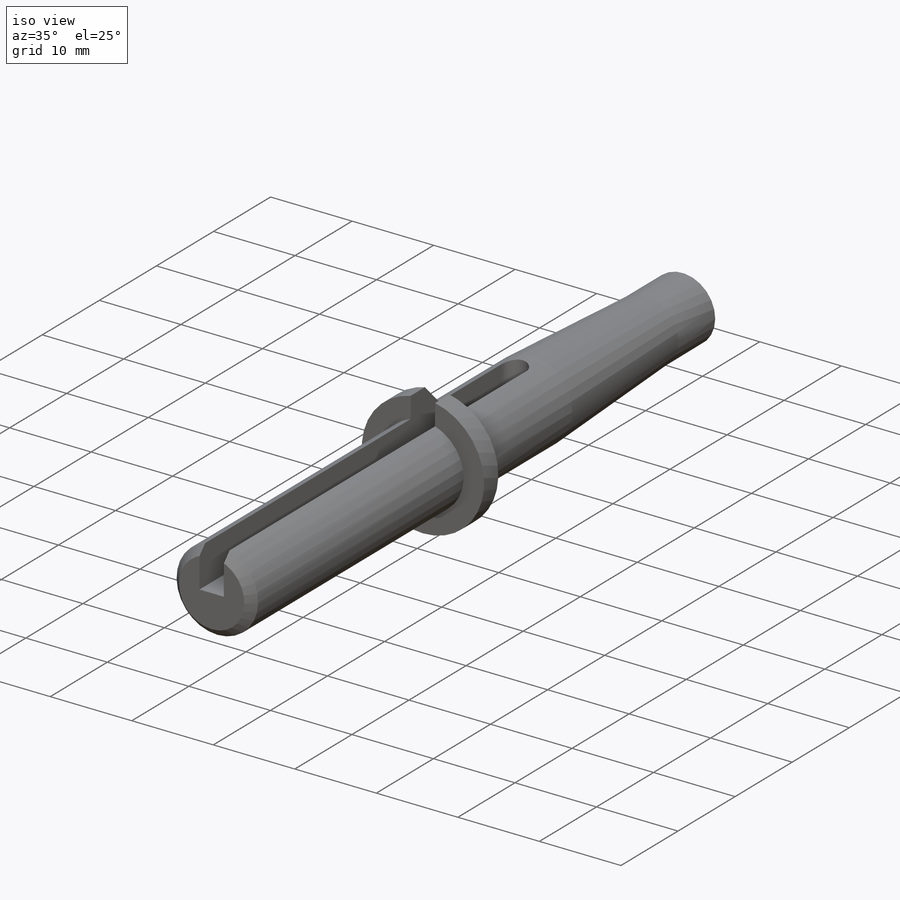
[diagram: iso view]
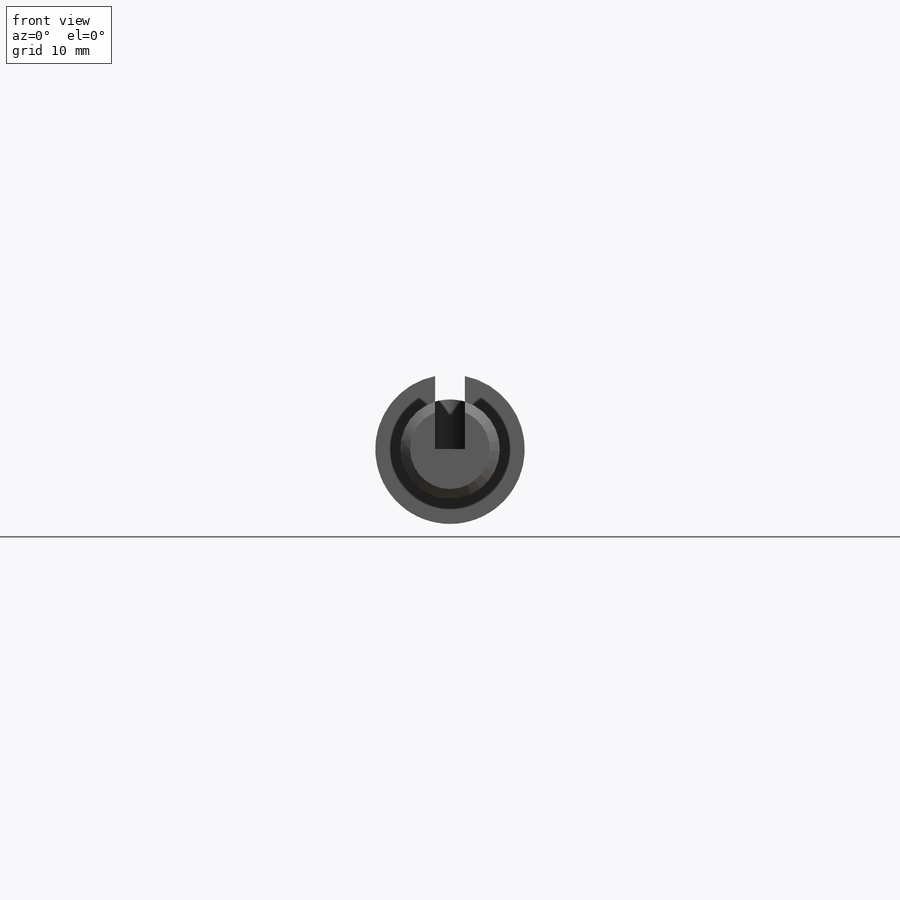
[diagram: front view]
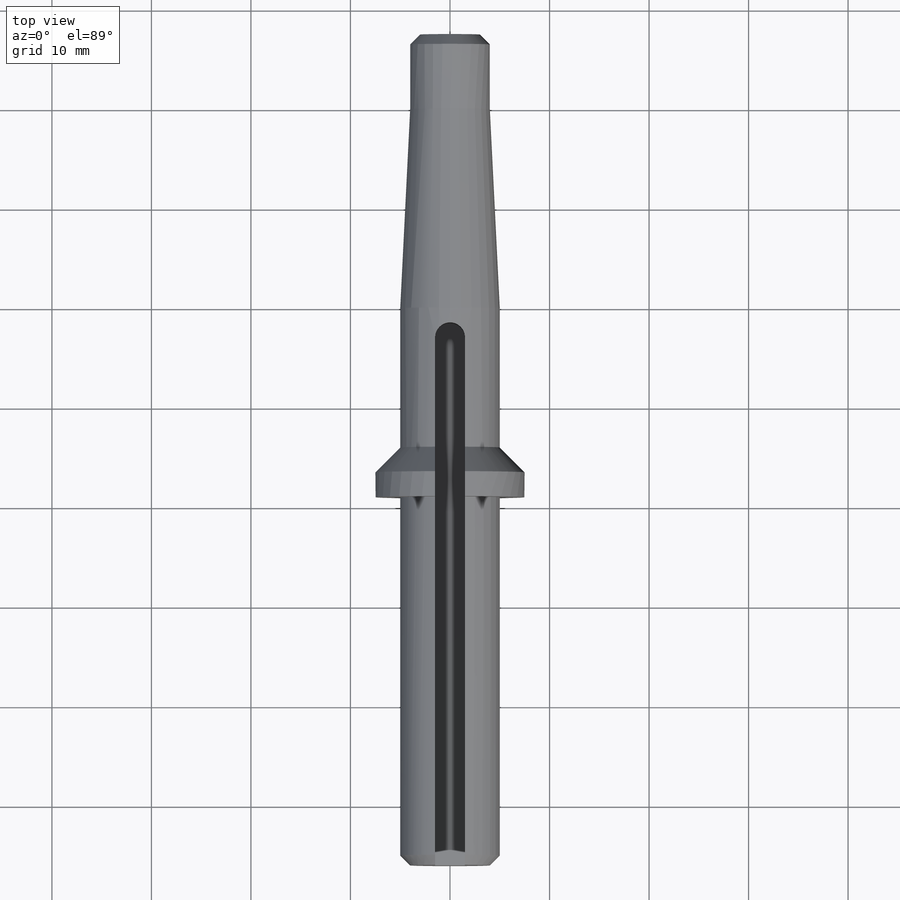
[diagram: top view]
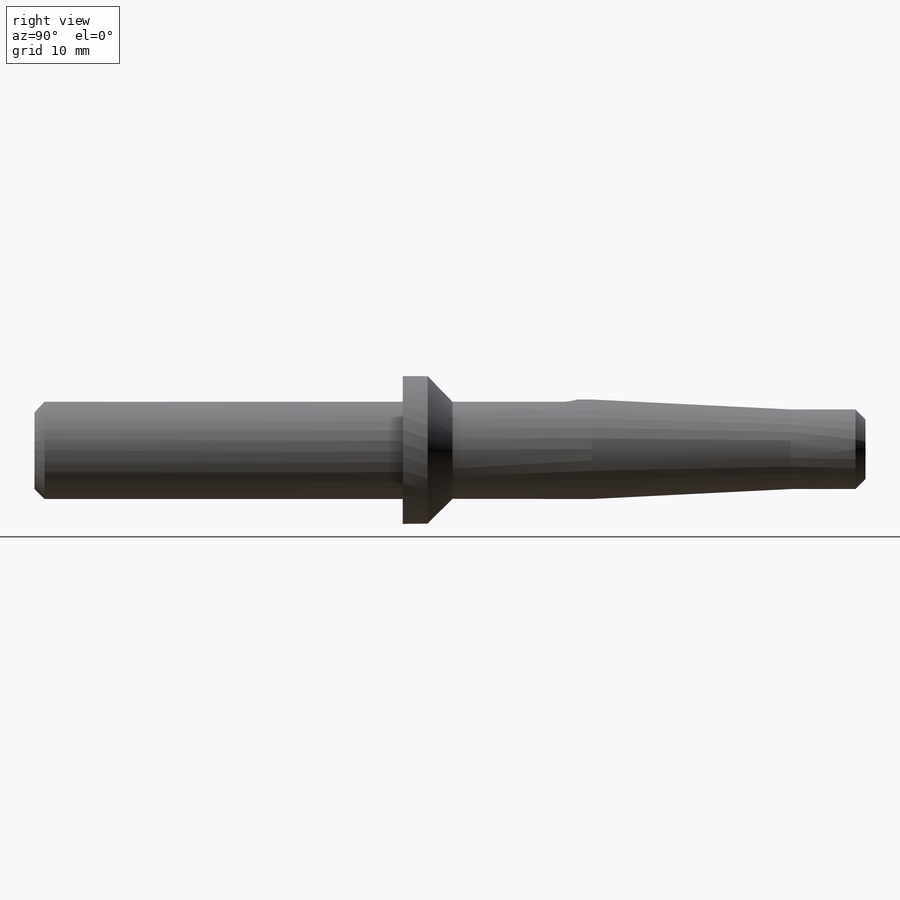
[diagram: right view]
SOLIDWORKS PART (.sldprt)
format: sldprt  version: not decoded by parser v0  size: 327,680 bytes
history: native  units: mm
features: sketch x6, extrude x4, plane x2, thread x2, chamfer x2, material x1, cut_revolve x1, cut_extrude x1 (+13 scaffold rows collapsed)
feature tree (32):
  scaffold x13  (default folders/planes/origin — collapsed)
  material  "Ст20"
  sketch  "Sketch1"  dims[D1=4.0mm]
  extrude  "Boss-Extrude1"  Depth=16.5mm
  sketch  "Sketch2"  dims[D1=6.0mm]
  extrude  "Boss-Extrude2"  Depth=39.5mm
  plane  "Plane4"  Offset=21mm
  plane  "Plane5"
  sketch  "Sketch9"  dims[D1=~4.892804mm]
  sketch  "Sketch16"  dims[D1=2.5mm D2=4.0mm]
  cut_revolve  "Cut-Revolve1"  [1 undecoded]
  thread  "Условное изображение резьбы2"  Diameter=19mm  [1 undecoded]
  sketch  "Sketch38"  dims[D1=2.5mm D2=3.0mm D3=3.0mm]
  chamfer  "Фаска1"  Distance=2.5mm Angle=45deg
  extrude  "Бобышка-Вытянуть1"  Depth=20mm
  sketch  "Эскиз1"
  extrude  "Бобышка-Вытянуть2"  [1 undecoded]
  thread  "Условное изображение резьбы3"  Diameter=7.5mm  [1 undecoded]
  chamfer  "Фаска2"  Distance=1mm Angle=45deg
  cut_extrude  "Вырез-Вытянуть1"  Depth=10mm
decode coverage: 13 of 16 modeling features carry decoded parameters
note: ~ marks probable driven/reference dimensions
note: 4 parameter values undecoded
note: suppression state not decoded; provenance and decode notes live in map.json
